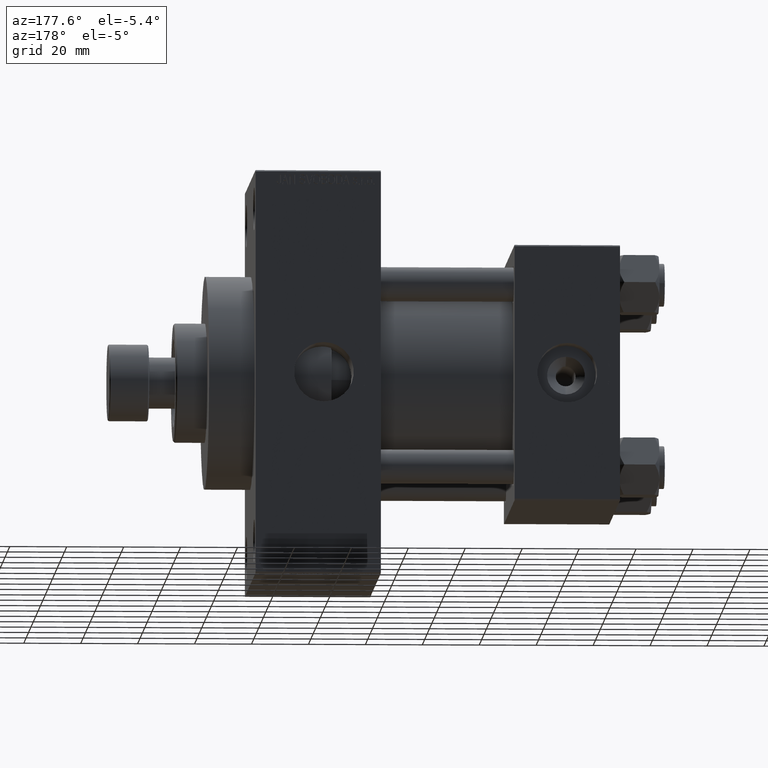
[diagram: clean part render]
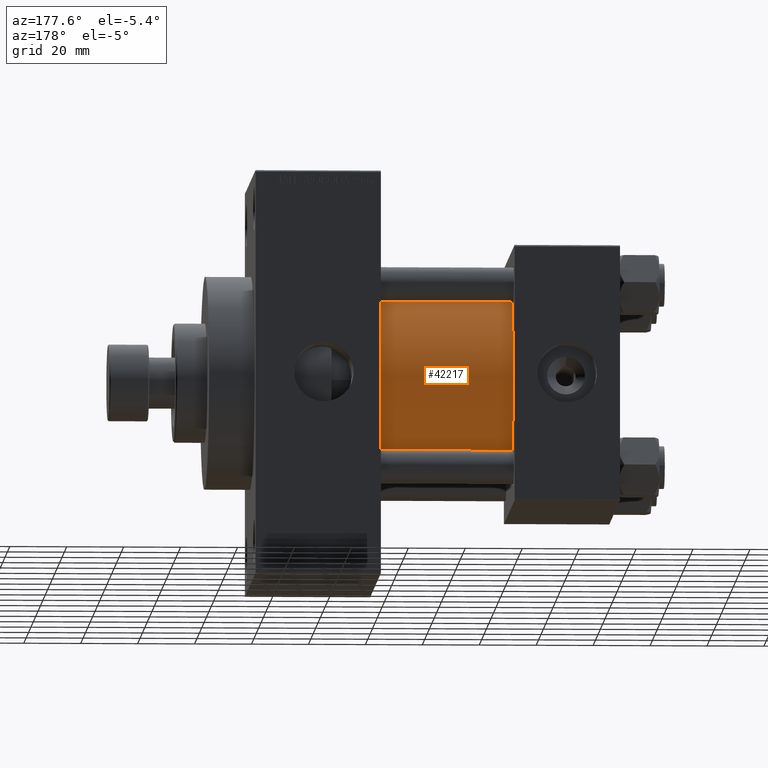
[diagram: same view with one face highlighted and labeled with its STEP entity id]
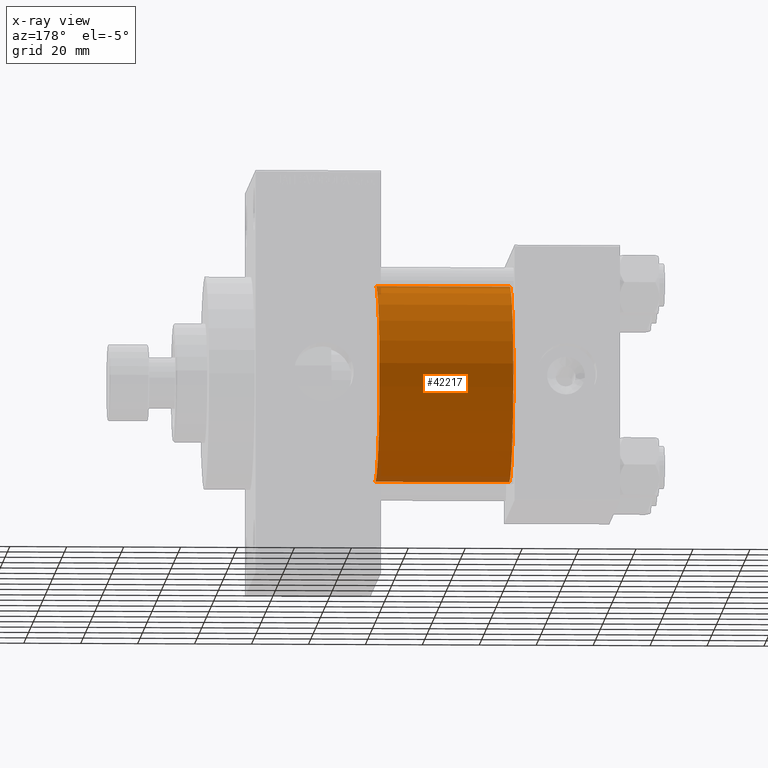
[diagram: x-ray of the same camera — body ghosted, the highlighted face saturated]
A machine part, auxiliary view. The second image highlights one B-rep face of the part: STEP entity #42217.
The next image is the same camera in x-ray: the body ghosted, the highlighted face saturated — about 4% of this face is hidden behind the body in this view.
In plain terms, the highlighted cylindrical surface (partial cylindrical patch) has radius 34.5 mm, axis along (-1, -0, -0).
Its self-contained STEP definition (entity closure, byte-faithful):
#138 = DIRECTION ( 'NONE',  ( 0.000000000000000000, 0.000000000000000000, 1.000000000000000000 ) ) ;
#493 = EDGE_CURVE ( 'NONE', #44485, #45384, #35914, .T. ) ;
#2203 = EDGE_CURVE ( 'NONE', #44485, #33297, #14746, .T. ) ;
#4439 = CARTESIAN_POINT ( 'NONE',  ( 83.99999999999998579, -2.602085213965210642E-15, 0.000000000000000000 ) ) ;
#4902 = FACE_OUTER_BOUND ( 'NONE', #23173, .T. ) ;
#6106 = CARTESIAN_POINT ( 'NONE',  ( 37.00000000000000000, 1.622946243093158675E-15, -34.50000000000000000 ) ) ;
#6171 = CARTESIAN_POINT ( 'NONE',  ( 83.99999999999998579, -2.602085213965210642E-15, 0.000000000000000000 ) ) ;
#8402 = EDGE_CURVE ( 'NONE', #45384, #32648, #11126, .T. ) ;
#9978 = ORIENTED_EDGE ( 'NONE', *, *, #8402, .F. ) ;
#11126 = LINE ( 'NONE', #33519, #17407 ) ;
#12274 = AXIS2_PLACEMENT_3D ( 'NONE', #36786, #18493, #138 ) ;
#14746 = LINE ( 'NONE', #33523, #20704 ) ;
#15961 = EDGE_CURVE ( 'NONE', #33297, #32648, #33055, .T. ) ;
#15996 = DIRECTION ( 'NONE',  ( 0.000000000000000000, 0.000000000000000000, 1.000000000000000000 ) ) ;
#17407 = VECTOR ( 'NONE', #23155, 1000.000000000000000 ) ;
#18493 = DIRECTION ( 'NONE',  ( 1.000000000000000000, -0.000000000000000000, 0.000000000000000000 ) ) ;
#20704 = VECTOR ( 'NONE', #29426, 1000.000000000000000 ) ;
#21962 = ORIENTED_EDGE ( 'NONE', *, *, #2203, .T. ) ;
#23155 = DIRECTION ( 'NONE',  ( -1.000000000000000000, -0.000000000000000000, -0.000000000000000000 ) ) ;
#23173 = EDGE_LOOP ( 'NONE', ( #47520, #21962, #29727, #9978 ) ) ;
#23492 = AXIS2_PLACEMENT_3D ( 'NONE', #4439, #34068, #15996 ) ;
#26143 = CARTESIAN_POINT ( 'NONE',  ( 37.00000000000000000, -2.602085213965210642E-15, 34.50000000000000000 ) ) ;
#29426 = DIRECTION ( 'NONE',  ( -1.000000000000000000, -0.000000000000000000, -0.000000000000000000 ) ) ;
#29727 = ORIENTED_EDGE ( 'NONE', *, *, #15961, .T. ) ;
#30569 = CARTESIAN_POINT ( 'NONE',  ( 83.99999999999998579, -2.602085213965210642E-15, 34.50000000000000000 ) ) ;
#32648 = VERTEX_POINT ( 'NONE', #26143 ) ;
#33055 = CIRCLE ( 'NONE', #12274, 34.50000000000000000 ) ;
#33239 = CARTESIAN_POINT ( 'NONE',  ( 83.99999999999998579, 1.622946243093158675E-15, -34.50000000000000000 ) ) ;
#33297 = VERTEX_POINT ( 'NONE', #6106 ) ;
#33519 = CARTESIAN_POINT ( 'NONE',  ( 83.99999999999998579, -2.602085213965210642E-15, 34.50000000000000000 ) ) ;
#33523 = CARTESIAN_POINT ( 'NONE',  ( 83.99999999999998579, 1.622946243093158675E-15, -34.50000000000000000 ) ) ;
#34068 = DIRECTION ( 'NONE',  ( -1.000000000000000000, -0.000000000000000000, -0.000000000000000000 ) ) ;
#34847 = DIRECTION ( 'NONE',  ( 1.000000000000000000, 0.000000000000000000, 0.000000000000000000 ) ) ;
#35914 = CIRCLE ( 'NONE', #47456, 34.50000000000000000 ) ;
#36786 = CARTESIAN_POINT ( 'NONE',  ( 37.00000000000000000, -2.602085213965210642E-15, 0.000000000000000000 ) ) ;
#38944 = DIRECTION ( 'NONE',  ( 0.000000000000000000, 0.000000000000000000, -1.000000000000000000 ) ) ;
#42217 = ADVANCED_FACE ( 'NONE', ( #4902 ), #42422, .T. ) ;
#42422 = CYLINDRICAL_SURFACE ( 'NONE', #23492, 34.50000000000000000 ) ;
#44485 = VERTEX_POINT ( 'NONE', #33239 ) ;
#45384 = VERTEX_POINT ( 'NONE', #30569 ) ;
#47456 = AXIS2_PLACEMENT_3D ( 'NONE', #6171, #34847, #38944 ) ;
#47520 = ORIENTED_EDGE ( 'NONE', *, *, #493, .F. ) ;